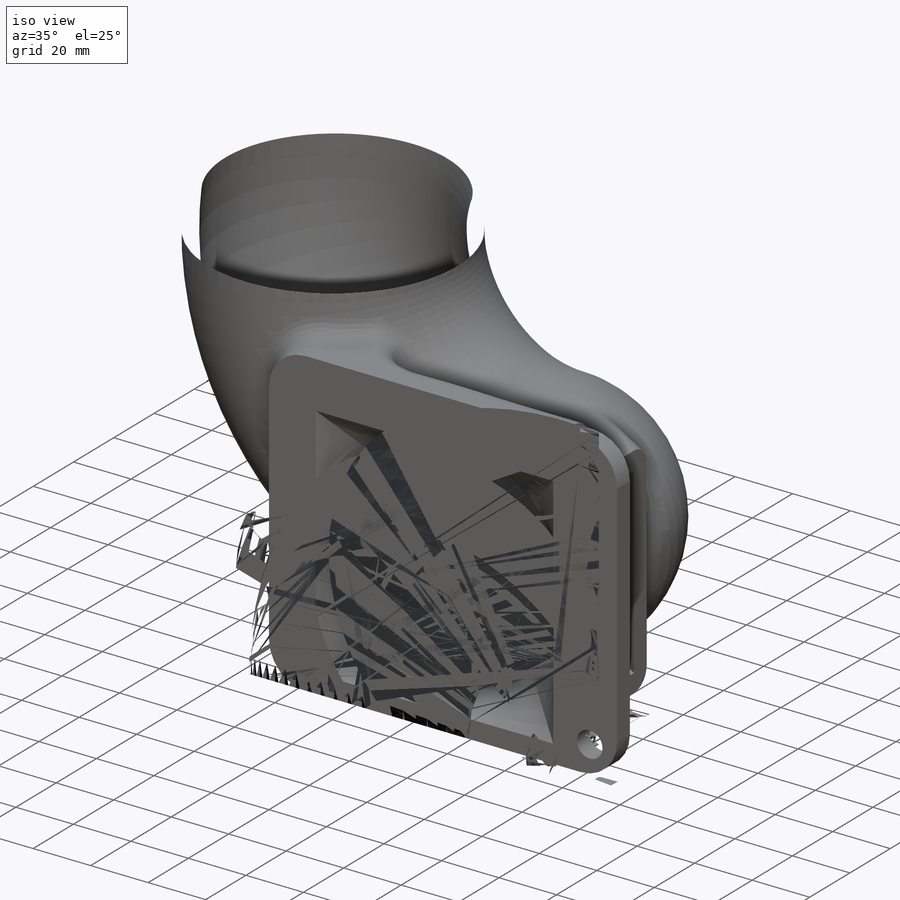
[diagram: iso view]
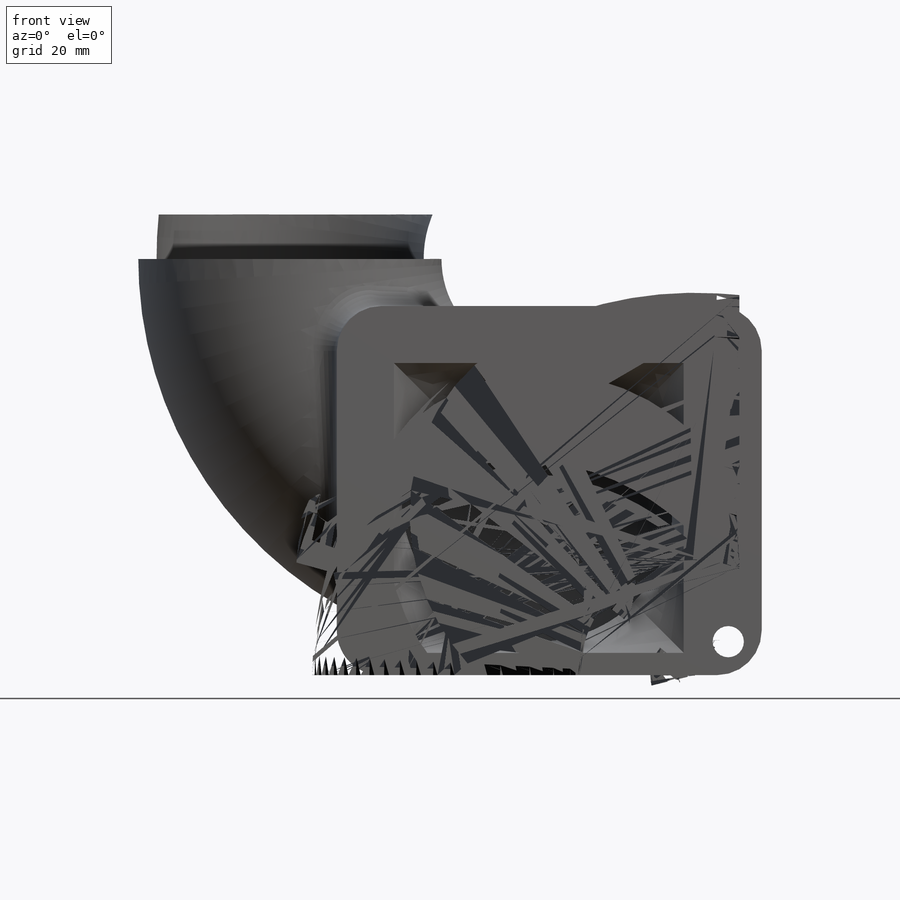
[diagram: front view]
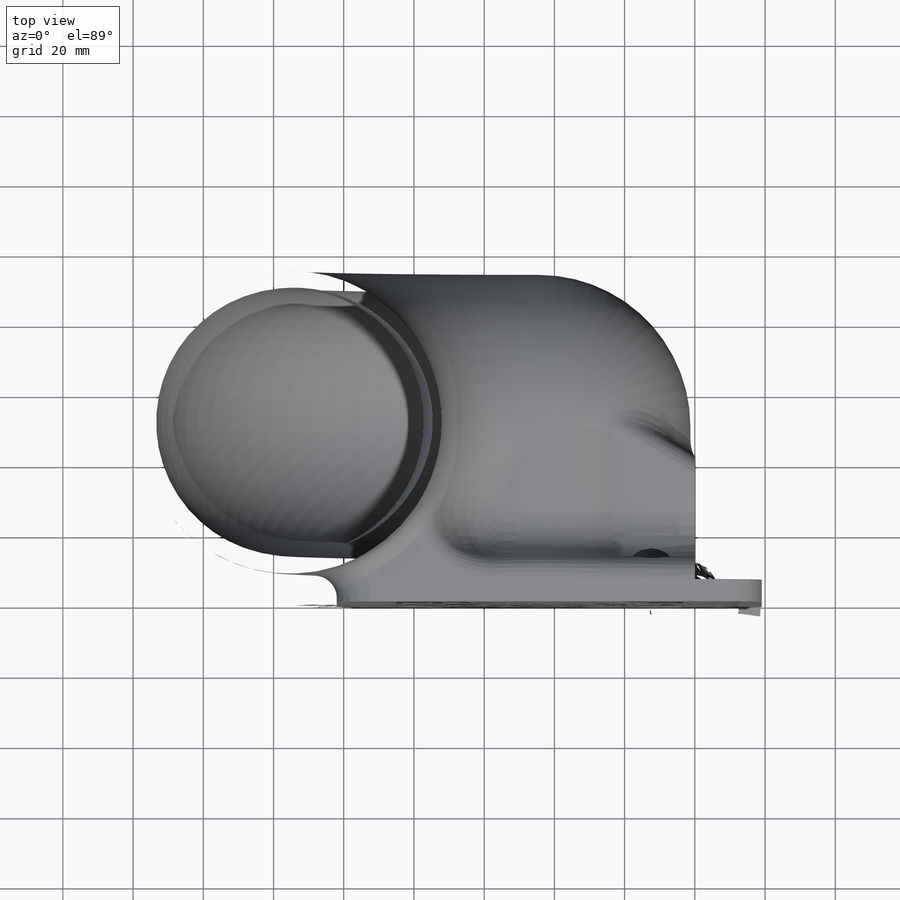
[diagram: top view]
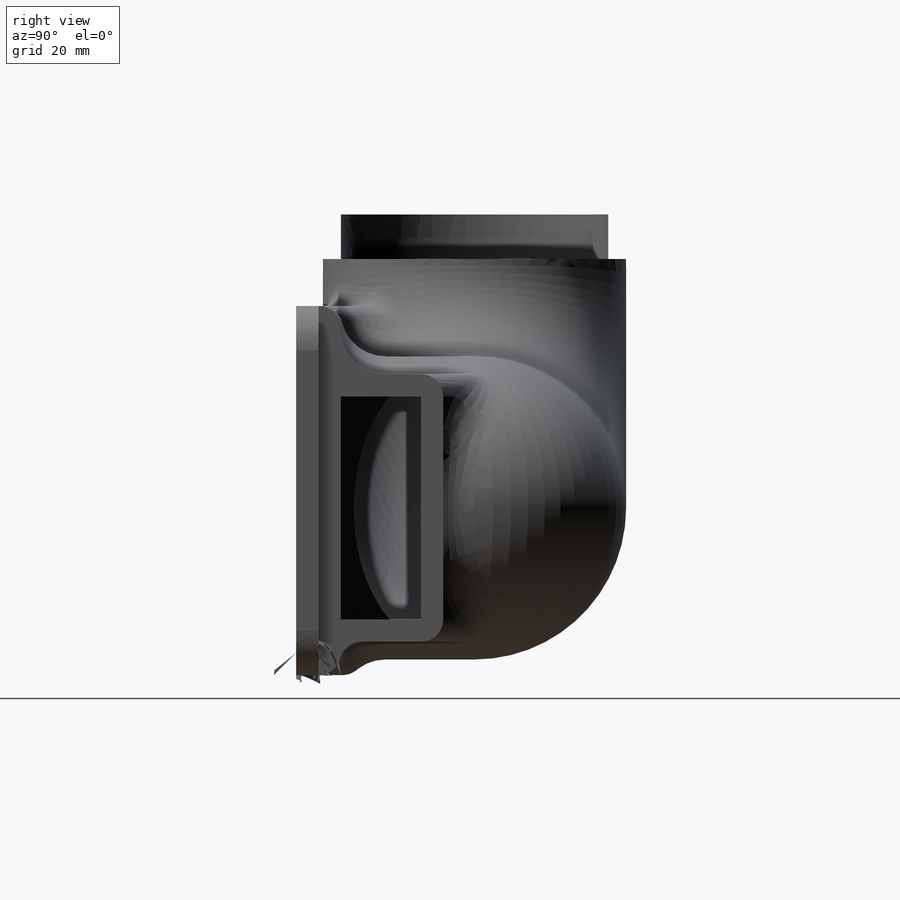
[diagram: right view]
SOLIDWORKS PART (.sldprt)
format: sldprt  version: not decoded by parser v0  size: 1,327,616 bytes
history: native  units: mm
features: sketch x26, plane x8, cut_extrude x8, extrude x8, fillet x8, material x1, sweep x1, revolve x1, boolean_combine x1 (+13 scaffold rows collapsed)
feature tree (75):
  scaffold x13  (default folders/planes/origin — collapsed)
  material  "ABS"
  plane  "Plane1"  Offset=241.3mm
  sketch  "3DSketch1"  dims[D11=76.2mm D1=101.6mm D2=158.75mm D3=241.3mm D4=73.025mm D5=82.55mm D6=6.35mm D7=15.875mm D8=22.86mm D9=12.7mm D10=63.5mm D12=50.8mm D13=114.3mm D14=25.4mm D15=25.4mm D16=25.4mm]
  plane  "Plane2"
  sketch  "Sketch1"  dims[c1.D1=76.2mm c1.D2=~102.798112mm c1.D3=~68.266378mm c1.D4=~65.513068mm c1.D5=~65.513068mm c2.D2=38.1mm c2.D3=38.1mm c2.D4=38.1mm c2.D5=38.1mm]
  sketch  "Sketch2"  dims[D1=76.2mm D2=5.08mm]
  sweep  "Sweep1"
  sketch  "Sketch3"
  revolve  "Revolve1"  Angle=90deg
  sketch  "Sketch4"  dims[D1=76.2mm]
  cut_extrude  "Cut-Extrude2"  [1 undecoded]
  sketch  "Sketch6"  dims[D3=78.74mm D1=88.9mm D2=95.25mm]
  extrude  "Boss-Extrude2"  Depth=6.35mm
  fillet  "Fillet1"  Radius=12.7mm
  fillet  "Fillet2"  Radius=12.7mm
  sketch  "Sketch13"  dims[c1.D1=~9.095296mm c1.D2=4.0mm c2.D1=69.85mm]
  cut_extrude  "Cut-Extrude4"  [1 undecoded]
  plane  "Plane4"  Offset=6.35mm
  sketch  "Sketch15"  dims[D1=12.7mm]
  cut_extrude  "Cut-Extrude6"  [1 undecoded]
  sketch  "Sketch5"  dims[D1=76.2mm]
  extrude  "Boss-Extrude1"  [1 undecoded]
  sketch  "Sketch7"  dims[D3=8.89mm D7=4.0mm D1=9.525mm D2=9.525mm D4=9.525mm D5=6.725mm D6=9.275mm D8=6.725mm D9=6.725mm D10=6.725mm D11=9.275mm D12=9.525mm D13=9.525mm D14=6.35mm]
  extrude  "Boss-Extrude3"  Depth=6.35mm
  sketch  "Sketch18"
  extrude  "Boss-Extrude5"  Depth=6.35mm
  sketch  "Sketch19"
  cut_extrude  "Cut-Extrude8"  Depth=6.35mm
  plane  "Plane6"  Offset=10.16mm
  sketch  "Sketch20"
  sketch  "Sketch21"
  plane  "Plane7"  Offset=44.45mm
  sketch  "Sketch23"  dims[D2=6.35mm D1=6.35mm]
  sketch  "Sketch24"
  extrude  "Boss-Extrude6"  [1 undecoded]
  sketch  "Sketch25"
  cut_extrude  "Cut-Extrude9"  [1 undecoded]
  sketch  "Sketch26"
  extrude  "Boss-Extrude7"  [1 undecoded]
  sketch  "Sketch27"
  extrude  "Boss-Extrude8"  [1 undecoded]
  fillet  "Fillet4"  Radius=12.7mm
  fillet  "Fillet5"  Radius=12.7mm
  fillet  "Fillet6"  Radius=6.35mm
  fillet  "Fillet7"  Radius=6.35mm
  fillet  "Fillet8"  Radius=12.7mm
  fillet  "Fillet10"  Radius=25.4mm
  sketch  "Sketch28"
  cut_extrude  "Cut-Extrude10"  [1 undecoded]
  plane  "Plane8"  Offset=6.35mm
  sketch  "Sketch29"  dims[D1=12.7mm]
  cut_extrude  "Cut-Extrude11"  Depth=12.7mm
  plane  "Plane10"
  plane  "Plane11"  Offset=12.7mm
  sketch  "Sketch35"
  sketch  "Sketch39"
  sketch  "Sketch40"
  sketch  "Sketch38"
  extrude  "Boss-Extrude10"  [1 undecoded]
  sketch  "Sketch33"
  cut_extrude  "Cut-Extrude13"  [1 undecoded]
  boolean_combine  "Combine1"
decode coverage: 25 of 53 modeling features carry decoded parameters
note: ~ marks probable driven/reference dimensions
note: 11 parameter values undecoded
summary: no parameter record found for 11 features
note: suppression state not decoded; provenance and decode notes live in map.json
